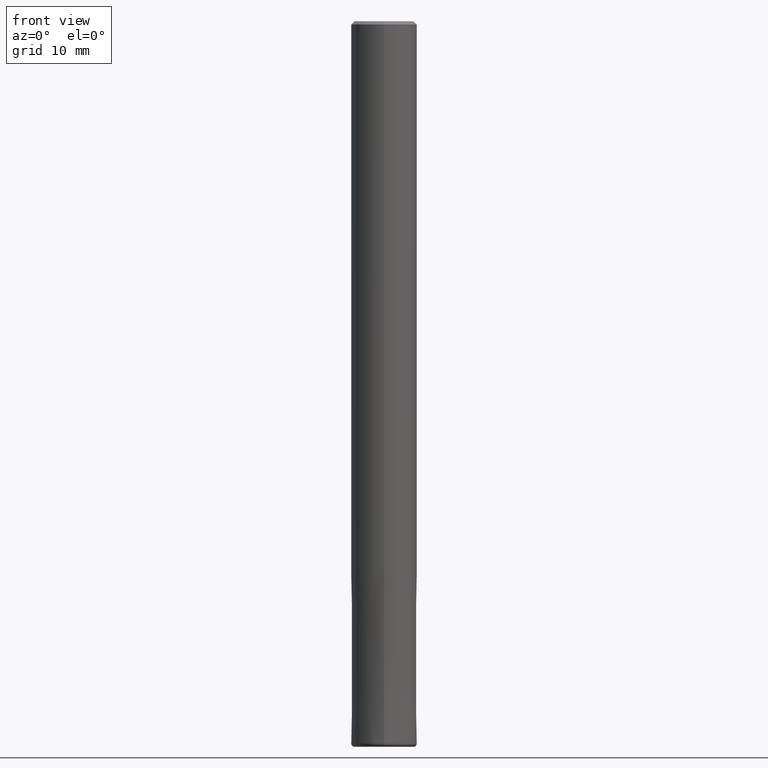
[diagram: clean part render]
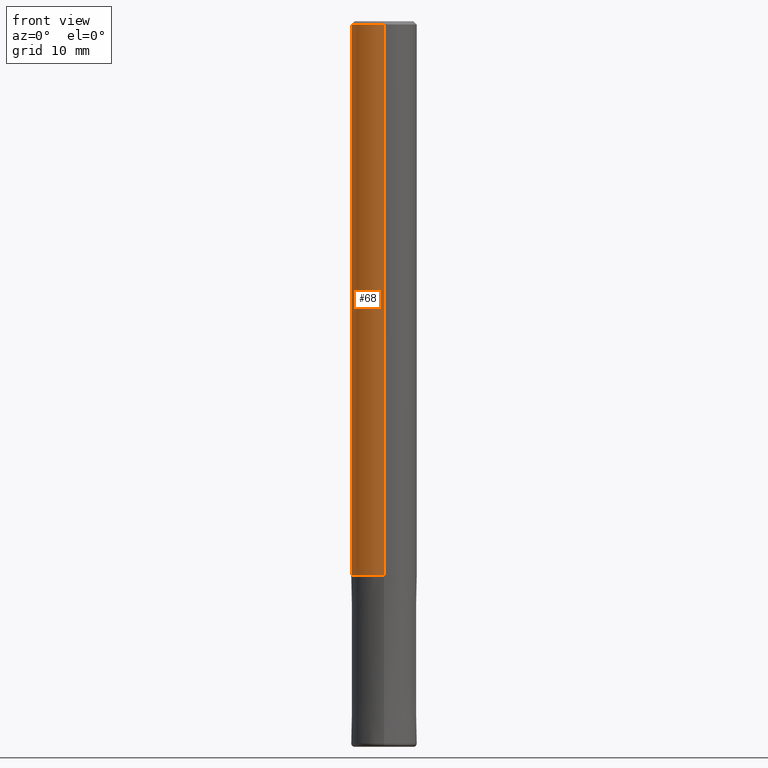
[diagram: same view with one face highlighted and labeled with its STEP entity id]
A machine part, front view. The second image highlights one B-rep face of the part: STEP entity #68.
In plain terms, the highlighted cylindrical surface (edge-blend (fillet) strip) has radius 5 mm, axis along (-0, -0, 1).
Its self-contained STEP definition (entity closure, byte-faithful):
#68=ADVANCED_FACE('',(#172),#173,.T.);
#72=VERTEX_POINT('',#177);
#74=EDGE_CURVE('',#90,#72,#179,.T.);
#90=VERTEX_POINT('',#199);
#102=VERTEX_POINT('',#212);
#132=VERTEX_POINT('',#246);
#136=EDGE_CURVE('',#72,#102,#250,.T.);
#142=EDGE_CURVE('',#90,#132,#257,.T.);
#154=EDGE_CURVE('',#102,#132,#270,.T.);
#172=FACE_OUTER_BOUND('',#278,.T.);
#173=CYLINDRICAL_SURFACE('',#279,5.0);
#177=CARTESIAN_POINT('',(6.12303176911189E-016,-5.0,-0.5));
#179=LINE('',#286,#287);
#199=CARTESIAN_POINT('',(6.12303176911189E-016,-5.0,-84.0));
#212=CARTESIAN_POINT('',(0.0,5.0,-0.5));
#246=CARTESIAN_POINT('',(0.0,5.0,-84.0));
#250=CIRCLE('',#375,5.0);
#257=CIRCLE('',#384,5.0);
#270=LINE('',#400,#401);
#278=EDGE_LOOP('',(#404,#405,#406,#407));
#279=AXIS2_PLACEMENT_3D('',#408,#409,#410);
#286=CARTESIAN_POINT('',(6.12303176911189E-016,-5.0,-42.25));
#287=VECTOR('',#411,1.0);
#375=AXIS2_PLACEMENT_3D('',#506,#507,#508);
#384=AXIS2_PLACEMENT_3D('',#520,#521,#522);
#400=CARTESIAN_POINT('',(-6.12303176911189E-016,5.0,-42.25));
#401=VECTOR('',#535,1.0);
#404=ORIENTED_EDGE('',*,*,#154,.T.);
#405=ORIENTED_EDGE('',*,*,#142,.F.);
#406=ORIENTED_EDGE('',*,*,#74,.T.);
#407=ORIENTED_EDGE('',*,*,#136,.T.);
#408=CARTESIAN_POINT('',(0.0,0.0,-42.25));
#409=DIRECTION('',(-0.0,-0.0,1.0));
#410=DIRECTION('',(0.0,1.0,0.0));
#411=DIRECTION('',(-0.0,-0.0,1.0));
#506=CARTESIAN_POINT('',(0.0,0.0,-0.5));
#507=DIRECTION('',(0.0,0.0,-1.0));
#508=DIRECTION('',(0.0,1.0,0.0));
#520=CARTESIAN_POINT('',(0.0,0.0,-84.0));
#521=DIRECTION('',(0.0,0.0,-1.0));
#522=DIRECTION('',(0.0,1.0,0.0));
#535=DIRECTION('',(0.0,0.0,-1.0));